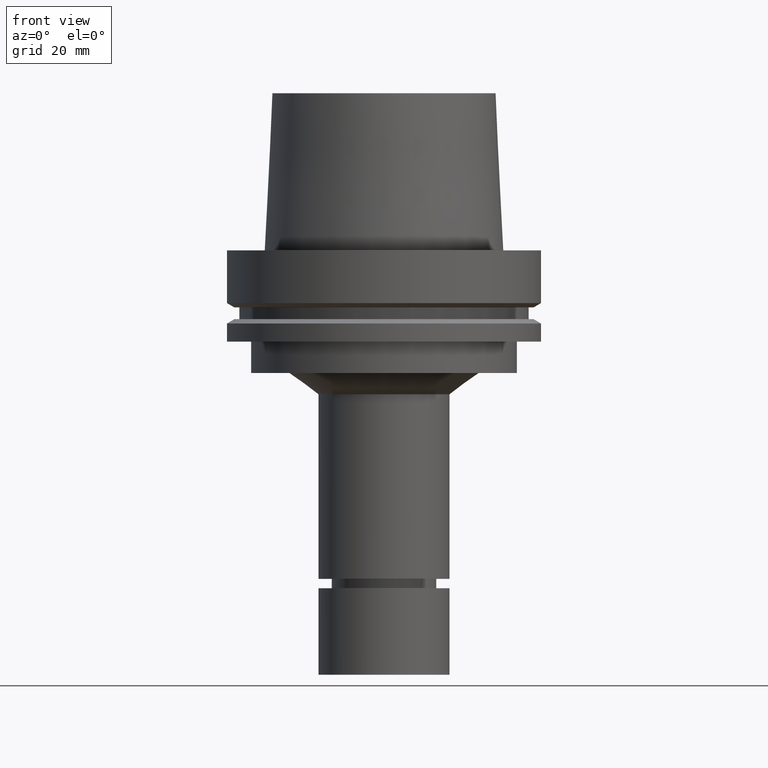
[diagram: clean part render]
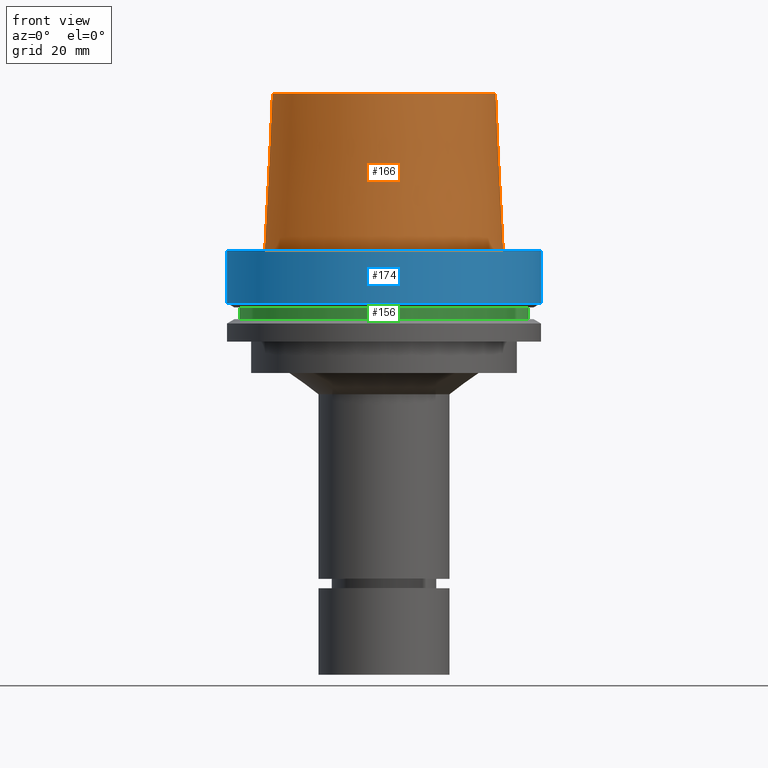
[diagram: same view with three faces highlighted in distinct colors, each labeled with its STEP entity id]
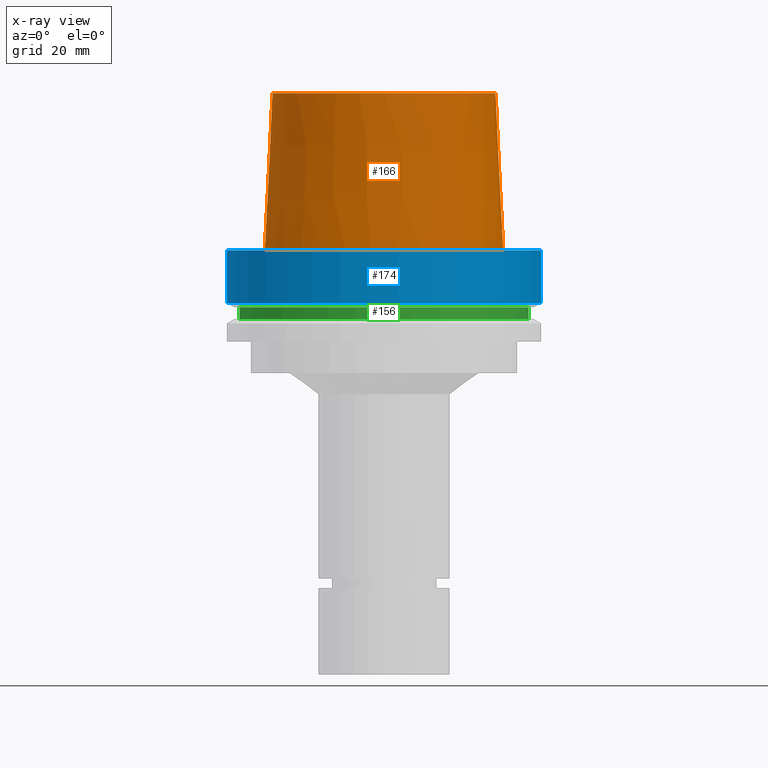
[diagram: x-ray of the same camera — body ghosted, the three highlighted faces saturated]
A machine part, front view with three faces highlighted in distinct colors.
The next image is the same camera in x-ray (body ghosted, the three faces saturated) — at least one of them is partly hidden behind the body in this view.
Their STEP definitions:

[orange] entity #166 — the highlighted conical surface has half-angle 2.862 deg.
#140=EDGE_CURVE('Unnamed[1]',#315,#315,#316,.T.);
#166=ADVANCED_FACE('Unnamed[1]',(#352,#353),#354,.T.);
#186=EDGE_CURVE('Unnamed[1]',#384,#384,#385,.T.);
#315=VERTEX_POINT('',#536);
#316=CIRCLE('',#537,35.5000000015618);
#352=FACE_BOUND('',#583,.T.);
#353=FACE_BOUND('',#584,.T.);
#354=CONICAL_SURFACE('',#585,36.7500000007484,0.0499583956894843);
#384=VERTEX_POINT('',#623);
#385=CIRCLE('',#624,37.9999999999349);
#536=CARTESIAN_POINT('',(-3.06161699786838E-015,35.5000000015618,50.0));
#537=AXIS2_PLACEMENT_3D('',#760,#761,#762);
#583=EDGE_LOOP('',(#797));
#584=EDGE_LOOP('',(#798));
#585=AXIS2_PLACEMENT_3D('',#799,#800,#801);
#623=CARTESIAN_POINT('',(-3.3636548776863E-032,37.9999999999349,-2.44634216324803E-015));
#624=AXIS2_PLACEMENT_3D('',#834,#835,#836);
#760=CARTESIAN_POINT('',(-3.06161699786838E-015,-6.12323399573676E-015,50.0));
#761=DIRECTION('',(6.12323399573677E-017,1.22464679914774E-016,-1.0));
#762=DIRECTION('',(-1.23259516440817E-032,1.0,1.22464679914774E-016));
#797=ORIENTED_EDGE('',*,*,#186,.F.);
#798=ORIENTED_EDGE('',*,*,#140,.T.);
#799=CARTESIAN_POINT('',(-1.53080849893419E-015,-3.06161699786838E-015,25.0));
#800=DIRECTION('',(6.12323399573676E-017,1.22464679914694E-016,-1.0));
#801=DIRECTION('',(-1.23259516440811E-032,1.0,1.22464679914694E-016));
#834=CARTESIAN_POINT('',(0.0,0.0,0.0));
#835=DIRECTION('',(6.12323399573677E-017,1.22464679914704E-016,-1.0));
#836=DIRECTION('',(-1.23259516440805E-032,1.0,1.22464679914704E-016));

[blue] entity #174 — the highlighted cylindrical surface (bore or boss wall) has radius 50 mm, axis along (0, 0, -1).
#90=EDGE_CURVE('Unnamed[1]',#236,#236,#237,.T.);
#148=EDGE_CURVE('Unnamed[1]',#327,#327,#328,.T.);
#174=ADVANCED_FACE('Unnamed[1]',(#364,#365),#366,.T.);
#236=VERTEX_POINT('',#440);
#237=CIRCLE('',#441,50.0);
#327=VERTEX_POINT('',#552);
#328=CIRCLE('',#553,50.0);
#364=FACE_BOUND('',#598,.T.);
#365=FACE_BOUND('',#599,.T.);
#366=CYLINDRICAL_SURFACE('',#600,50.0);
#440=CARTESIAN_POINT('',(1.0257889421431E-015,50.0,-16.75240474));
#441=AXIS2_PLACEMENT_3D('',#670,#671,#672);
#552=CARTESIAN_POINT('',(-1.81547968506605E-031,50.0,-9.76766004263236E-016));
#553=AXIS2_PLACEMENT_3D('',#772,#773,#774);
#598=EDGE_LOOP('',(#811));
#599=EDGE_LOOP('',(#812));
#600=AXIS2_PLACEMENT_3D('',#813,#814,#815);
#670=CARTESIAN_POINT('',(1.0257889421431E-015,2.05157788428619E-015,-16.75240474));
#671=DIRECTION('',(6.12323399573677E-017,1.22464679914672E-016,-1.0));
#672=DIRECTION('',(-1.23259516440783E-032,1.0,1.22464679914672E-016));
#772=CARTESIAN_POINT('',(0.0,0.0,0.0));
#773=DIRECTION('',(6.12323399573677E-017,1.22464679914672E-016,-1.0));
#774=DIRECTION('',(-1.23259516440783E-032,1.0,1.22464679914672E-016));
#811=ORIENTED_EDGE('',*,*,#90,.F.);
#812=ORIENTED_EDGE('',*,*,#148,.T.);
#813=CARTESIAN_POINT('',(5.12894471071548E-016,1.0257889421431E-015,-8.37620236999999));
#814=DIRECTION('',(6.12323399573677E-017,1.22464679914672E-016,-1.0));
#815=DIRECTION('',(-1.23259516440783E-032,1.0,1.22464679914672E-016));

[green] entity #156 — the highlighted cylindrical surface (bore or boss wall) has radius 46 mm, axis along (0, 0, -1).
#83=EDGE_CURVE('Unnamed[1]',#225,#225,#226,.T.);
#142=EDGE_CURVE('Unnamed[1]',#318,#318,#319,.T.);
#156=ADVANCED_FACE('Unnamed[1]',(#338,#339),#340,.T.);
#225=VERTEX_POINT('',#426);
#226=CIRCLE('',#427,46.0);
#318=VERTEX_POINT('',#540);
#319=CIRCLE('',#541,46.0);
#338=FACE_BOUND('',#566,.T.);
#339=FACE_BOUND('',#567,.T.);
#340=CYLINDRICAL_SURFACE('',#568,46.0);
#426=CARTESIAN_POINT('',(1.10983616172729E-015,46.0,-18.125));
#427=AXIS2_PLACEMENT_3D('',#658,#659,#660);
#540=CARTESIAN_POINT('',(1.33945743656742E-015,46.0,-21.875));
#541=AXIS2_PLACEMENT_3D('',#763,#764,#765);
#566=EDGE_LOOP('',(#784));
#567=EDGE_LOOP('',(#785));
#568=AXIS2_PLACEMENT_3D('',#786,#787,#788);
#658=CARTESIAN_POINT('',(1.10983616172729E-015,2.21967232345458E-015,-18.125));
#659=DIRECTION('',(6.12323399573677E-017,1.22464679914716E-016,-1.0));
#660=DIRECTION('',(-1.23259516440783E-032,1.0,1.22464679914716E-016));
#763=CARTESIAN_POINT('',(1.33945743656742E-015,2.67891487313484E-015,-21.875));
#764=DIRECTION('',(6.12323399573677E-017,1.22464679914716E-016,-1.0));
#765=DIRECTION('',(-1.23259516440783E-032,1.0,1.22464679914716E-016));
#784=ORIENTED_EDGE('',*,*,#142,.F.);
#785=ORIENTED_EDGE('',*,*,#83,.T.);
#786=CARTESIAN_POINT('',(1.22464679914735E-015,2.44929359829471E-015,-20.0));
#787=DIRECTION('',(6.12323399573677E-017,1.22464679914716E-016,-1.0));
#788=DIRECTION('',(-1.23259516440783E-032,1.0,1.22464679914716E-016));